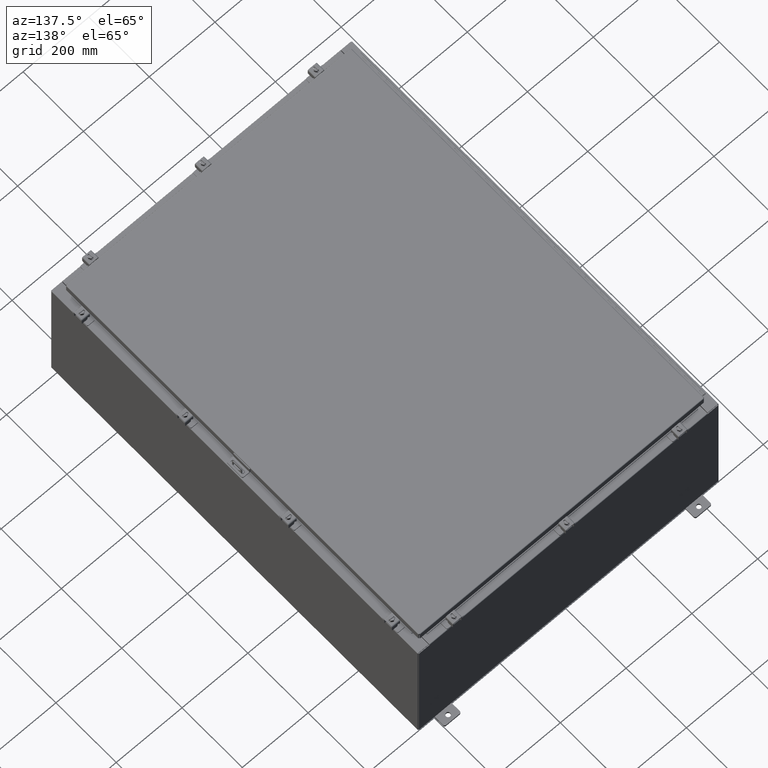
[diagram: clean part render]
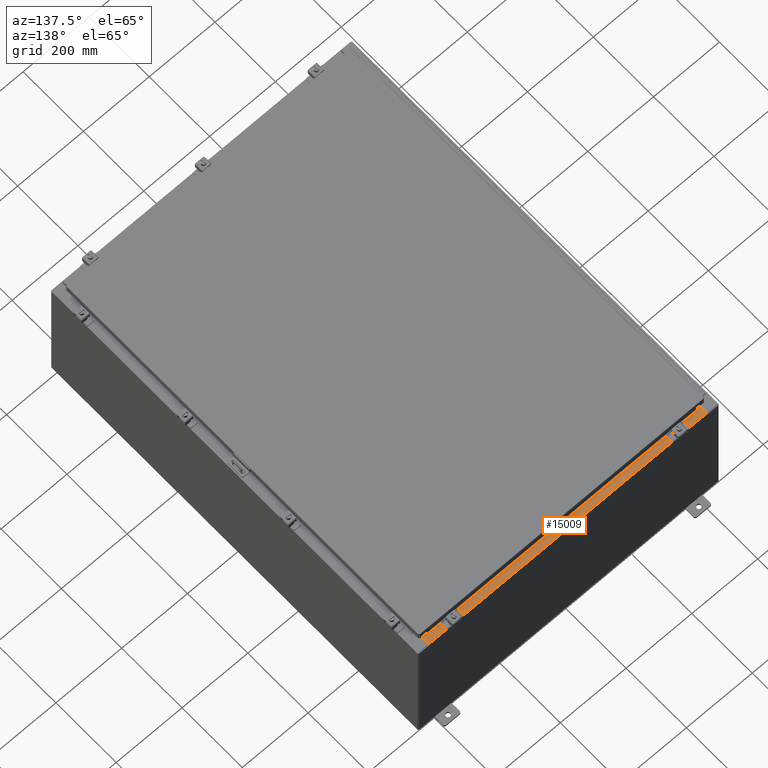
[diagram: same view with one face highlighted and labeled with its STEP entity id]
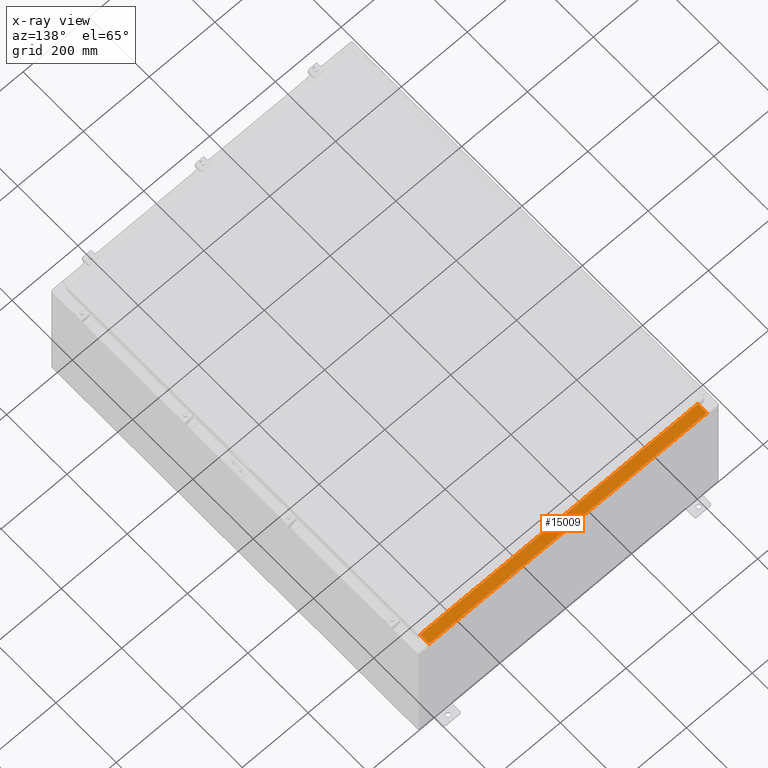
[diagram: x-ray of the same camera — body ghosted, the highlighted face saturated]
A machine part, auxiliary view. The second image highlights one B-rep face of the part: STEP entity #15009.
The next image is the same camera in x-ray: the body ghosted, the highlighted face saturated — about 0% of this face is hidden behind the body in this view.
In plain terms, the highlighted planar face has unit normal (0, 0, 1).
Its self-contained STEP definition (entity closure, byte-faithful):
#1041 = LINE ( 'NONE', #37959, #42764 ) ;
#1990 = CARTESIAN_POINT ( 'NONE',  ( 5.250912337413644300E-016, 2.852545452309695200E-014, 8.000000000000001800 ) ) ;
#2172 = DIRECTION ( 'NONE',  ( 6.568047492761433500E-017, 3.566381192773190000E-015, 1.000000000000000000 ) ) ;
#2257 = DIRECTION ( 'NONE',  ( -1.000000000000000000, 0.0000000000000000000, 0.0000000000000000000 ) ) ;
#3146 = EDGE_LOOP ( 'NONE', ( #41347, #53567, #50827, #13227 ) ) ;
#4216 = AXIS2_PLACEMENT_3D ( 'NONE', #1990, #2172, #31325 ) ;
#6112 = VECTOR ( 'NONE', #34937, 39.37007874015748100 ) ;
#8556 = VERTEX_POINT ( 'NONE', #17309 ) ;
#9309 = VERTEX_POINT ( 'NONE', #23992 ) ;
#10020 = EDGE_CURVE ( 'NONE', #17202, #34625, #25888, .T. ) ;
#10643 = CARTESIAN_POINT ( 'NONE',  ( 16.63720000000000000, -1.300299999999999800, 8.000000000000003600 ) ) ;
#12567 = LINE ( 'NONE', #31235, #34793 ) ;
#13227 = ORIENTED_EDGE ( 'NONE', *, *, #16185, .T. ) ;
#15009 = ADVANCED_FACE ( 'NONE', ( #36625 ), #18676, .T. ) ;
#16185 = EDGE_CURVE ( 'NONE', #17202, #9309, #1041, .T. ) ;
#17202 = VERTEX_POINT ( 'NONE', #38171 ) ;
#17309 = CARTESIAN_POINT ( 'NONE',  ( -16.63720000000000000, -1.287299999999999400, 8.000000000000007100 ) ) ;
#18676 = PLANE ( 'NONE',  #4216 ) ;
#22356 = CARTESIAN_POINT ( 'NONE',  ( -16.63720000000000000, -0.07469999999999973900, 8.000000000000001800 ) ) ;
#23992 = CARTESIAN_POINT ( 'NONE',  ( -16.63720000000000000, -0.08770000000000136000, 8.000000000000001800 ) ) ;
#24571 = VECTOR ( 'NONE', #32620, 39.37007874015748100 ) ;
#25888 = LINE ( 'NONE', #10643, #24571 ) ;
#28057 = EDGE_CURVE ( 'NONE', #8556, #9309, #51734, .T. ) ;
#31235 = CARTESIAN_POINT ( 'NONE',  ( 16.63720000000000400, -1.287300000000000300, 8.000000000000003600 ) ) ;
#31325 = DIRECTION ( 'NONE',  ( 0.0000000000000000000, -1.000000000000000000, 3.566381192773190000E-015 ) ) ;
#32620 = DIRECTION ( 'NONE',  ( -0.0000000000000000000, -1.000000000000000000, 3.566381192773190000E-015 ) ) ;
#34625 = VERTEX_POINT ( 'NONE', #42734 ) ;
#34793 = VECTOR ( 'NONE', #2257, 39.37007874015748100 ) ;
#34937 = DIRECTION ( 'NONE',  ( -0.0000000000000000000, 1.000000000000000000, -3.566381192773190000E-015 ) ) ;
#36625 = FACE_OUTER_BOUND ( 'NONE', #3146, .T. ) ;
#37959 = CARTESIAN_POINT ( 'NONE',  ( 5.308514113925181600E-016, -0.08770000000000136000, 8.000000000000001800 ) ) ;
#38171 = CARTESIAN_POINT ( 'NONE',  ( 16.63720000000000400, -0.08770000000000102700, 8.000000000000000000 ) ) ;
#41347 = ORIENTED_EDGE ( 'NONE', *, *, #28057, .F. ) ;
#42181 = DIRECTION ( 'NONE',  ( -1.000000000000000000, -6.568047492761434800E-017, 6.568047492761457000E-017 ) ) ;
#42734 = CARTESIAN_POINT ( 'NONE',  ( 16.63720000000000000, -1.287300000000000300, 8.000000000000003600 ) ) ;
#42764 = VECTOR ( 'NONE', #42181, 39.37007874015748100 ) ;
#50827 = ORIENTED_EDGE ( 'NONE', *, *, #10020, .F. ) ;
#51734 = LINE ( 'NONE', #22356, #6112 ) ;
#52311 = EDGE_CURVE ( 'NONE', #34625, #8556, #12567, .T. ) ;
#53567 = ORIENTED_EDGE ( 'NONE', *, *, #52311, .F. ) ;